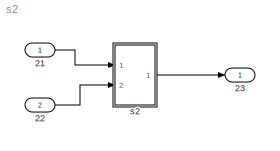
MODEL s2
KIND model
BLOCK [Inport] 21
  IconDisplay = Port number
  SID = 1
BLOCK [Inport] 22
  IconDisplay = Port number
  Port = 2
  SID = 2
BLOCK [Outport] 23
  IconDisplay = Port number
  SID = 8
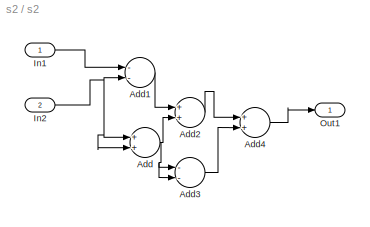
BLOCK [SubSystem] s2
  Ports = [2, 1]
  RequestExecContextInheritance = off
  SID = 3
  Variant = off
BLOCK [Sum] s2/Add
  InputSameDT = off
  OutDataTypeStr = Inherit: Inherit via internal rule
  Ports = [2, 1]
  SID = 9
  SaturateOnIntegerOverflow = off
BLOCK [Sum] s2/Add1
  InputSameDT = off
  Inputs = --
  OutDataTypeStr = Inherit: Inherit via internal rule
  Ports = [2, 1]
  SID = 6
  SaturateOnIntegerOverflow = off
BLOCK [Sum] s2/Add2
  InputSameDT = off
  OutDataTypeStr = Inherit: Inherit via internal rule
  Ports = [2, 1]
  SID = 10
  SaturateOnIntegerOverflow = off
BLOCK [Sum] s2/Add3
  InputSameDT = off
  Inputs = --
  OutDataTypeStr = Inherit: Inherit via internal rule
  Ports = [2, 1]
  SID = 11
  SaturateOnIntegerOverflow = off
BLOCK [Sum] s2/Add4
  InputSameDT = off
  OutDataTypeStr = Inherit: Inherit via internal rule
  Ports = [2, 1]
  SID = 12
  SaturateOnIntegerOverflow = off
BLOCK [Inport] s2/In1
  IconDisplay = Port number
  SID = 4
BLOCK [Inport] s2/In2
  IconDisplay = Port number
  Port = 2
  SID = 5
BLOCK [Outport] s2/Out1
  IconDisplay = Port number
  SID = 7
LINE 21:1 -> s2:1
LINE 22:1 -> s2:2
LINE s2/Add1:1 -> s2/Add2:1
LINE s2/Add2:1 -> s2/Add4:1
LINE s2/Add3:1 -> s2/Add4:2
LINE s2/Add4:1 -> s2/Out1:1
NET s2/Add:1 -> s2/Add2:2, s2/Add3:1, s2/Add3:2
LINE s2/In1:1 -> s2/Add1:1
NET s2/In2:1 -> s2/Add1:2, s2/Add:1, s2/Add:2
LINE s2:1 -> 23:1
note: NET lines group one-source signal fan-out (src -> all destinations, sorted); 1:1 wires keep LINE
